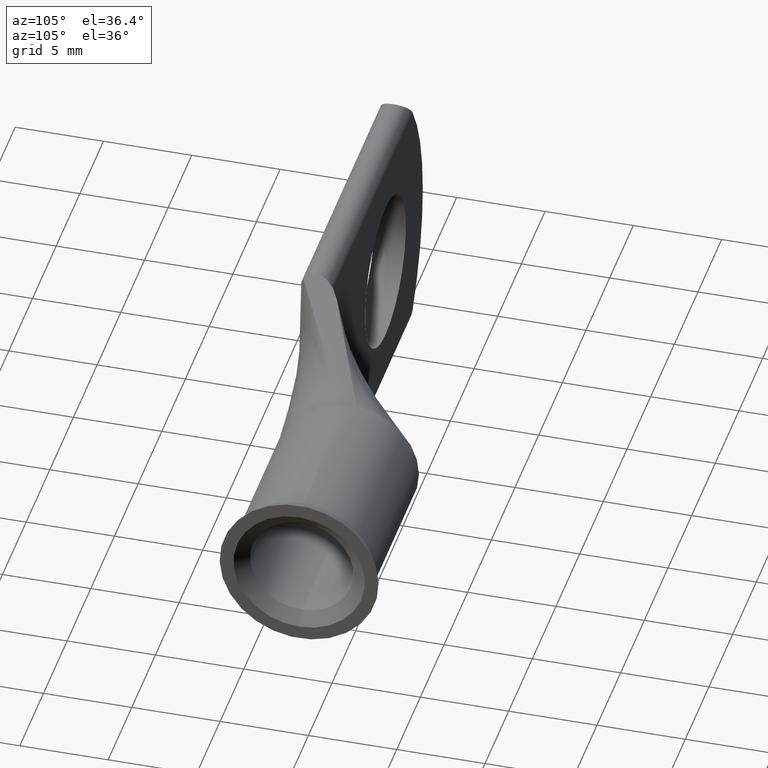
[diagram: clean part render]
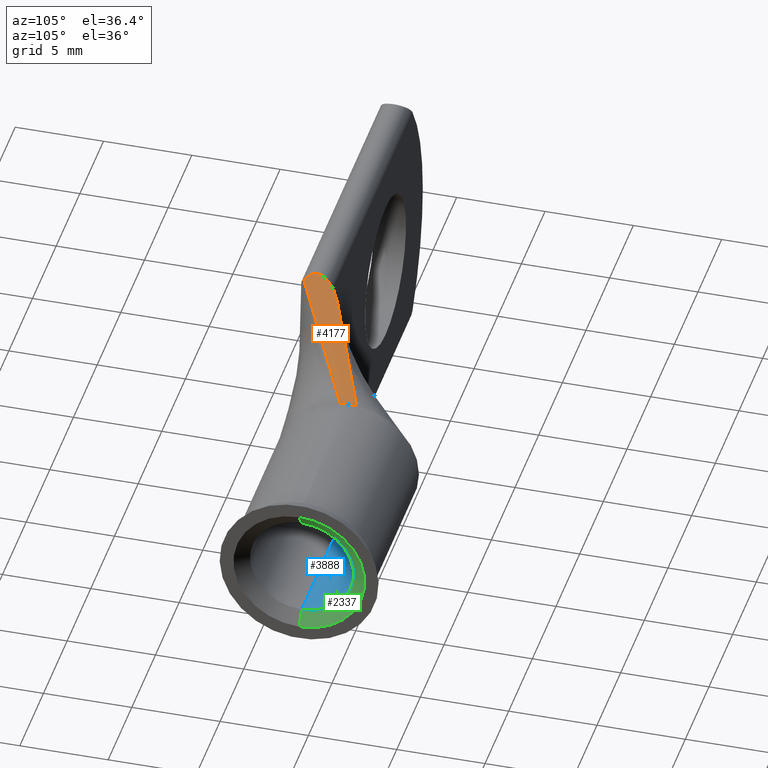
[diagram: same view with three faces highlighted in distinct colors, each labeled with its STEP entity id]
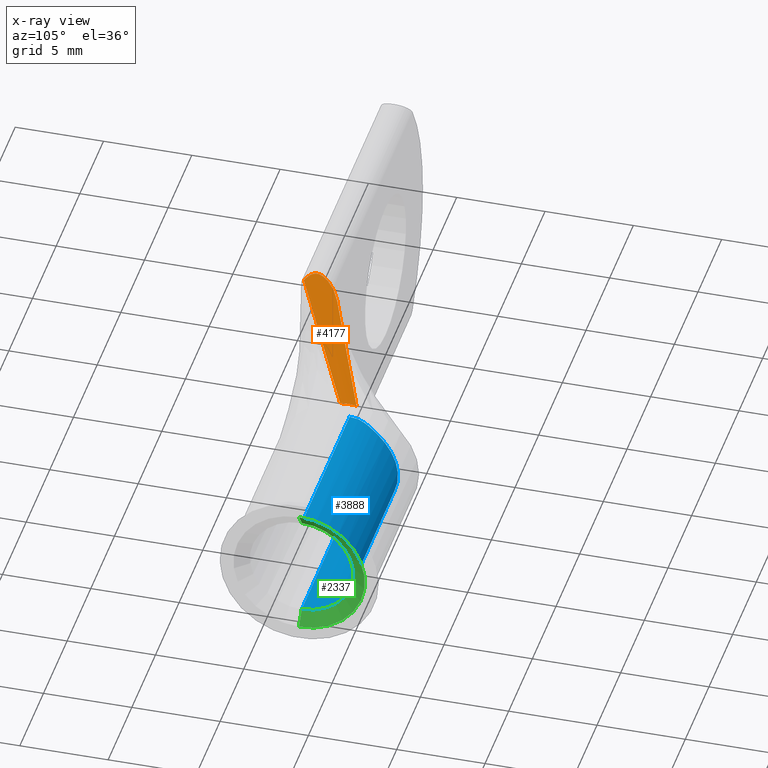
[diagram: x-ray of the same camera — body ghosted, the three highlighted faces saturated]
A machine part, auxiliary view with three faces highlighted in distinct colors.
The next image is the same camera in x-ray (body ghosted, the three faces saturated) — at least one of them is partly hidden behind the body in this view.
Their STEP definitions:

[orange] entity #4177 — the highlighted face is a freeform B-spline surface patch.
#8 = CARTESIAN_POINT ( 'NONE',  ( 0.6402576636837783441, 0.1327373430997975112, 0.1502413066314799428 ) ) ;
#18 = LINE ( 'NONE', #961, #1896 ) ;
#28 = CARTESIAN_POINT ( 'NONE',  ( 0.6402576636837783441, 0.1269663321681389623, 0.1495022548466196088 ) ) ;
#113 = CARTESIAN_POINT ( 'NONE',  ( 0.3750000000000001665, -0.01166666666666666026, 0.2999999999999999889 ) ) ;
#130 = EDGE_CURVE ( 'NONE', #530, #387, #2767, .T. ) ;
#188 = ORIENTED_EDGE ( 'NONE', *, *, #3182, .F. ) ;
#198 = CARTESIAN_POINT ( 'NONE',  ( 0.3750000000000002220, -0.005601093219272100174, 0.2999999999999649614 ) ) ;
#209 = B_SPLINE_CURVE_WITH_KNOTS ( 'NONE', 3,
 ( #3537, #198, #887, #3797, #3143, #869 ),
 .UNSPECIFIED., .F., .F.,
 ( 4, 2, 4 ),
 ( 7.736893155969312990E-17, 0.0004201354584350807243, 0.0008402709168700841450 ),
 .UNSPECIFIED. ) ;
#229 = ORIENTED_EDGE ( 'NONE', *, *, #3762, .T. ) ;
#242 = CARTESIAN_POINT ( 'NONE',  ( 0.3882626671776301386, 0.03068299232843550370, 0.2925069834889248432 ) ) ;
#265 = DIRECTION ( 'NONE',  ( 1.000000000000000000, 0.000000000000000000, 0.000000000000000000 ) ) ;
#338 = B_SPLINE_SURFACE_WITH_KNOTS ( 'NONE', 3, 1, ( 
 ( #1982, #3578, #2867 ),
 ( #629, #690, #1941 ),
 ( #2913, #1662, #2264 ),
 ( #28, #4179, #1641 ),
 ( #8, #1341, #2631 ),
 ( #4055, #1387, #113 ),
 ( #1038, #2107, #2326 ),
 ( #3677, #1106, #3048 ),
 ( #2416, #2394, #1362 ),
 ( #1059, #2721, #784 ),
 ( #1410, #1747, #403 ),
 ( #1708, #2654, #3007 ) ),
 .UNSPECIFIED., .F., .F., .F.,
 ( 4, 3, 2, 3, 4 ),
 ( 2, 1, 2 ),
 ( -0.05628810992423987497, 0.000000000000000000, 0.5000000000000000000, 1.000000000000000000, 1.061457322181564855 ),
 ( -0.04831874167357881611, 0.000000000000000000, 1.000000000000000000 ),
 .UNSPECIFIED. ) ;
#358 = FACE_OUTER_BOUND ( 'NONE', #2749, .T. ) ;
#387 = VERTEX_POINT ( 'NONE', #2527 ) ;
#403 = CARTESIAN_POINT ( 'NONE',  ( 0.3750000000000001665, 0.03786800836847303148, 0.3000000000000000444 ) ) ;
#410 = ORIENTED_EDGE ( 'NONE', *, *, #1853, .T. ) ;
#419 = EDGE_CURVE ( 'NONE', #3214, #877, #1175, .T. ) ;
#475 = EDGE_CURVE ( 'NONE', #1172, #2465, #1005, .T. ) ;
#512 = CARTESIAN_POINT ( 'NONE',  ( 0.6280315000000000758, 0.1377522466780526089, 0.000000000000000000 ) ) ;
#530 = VERTEX_POINT ( 'NONE', #1404 ) ;
#629 = CARTESIAN_POINT ( 'NONE',  ( 0.6402576636837783441, 0.1256669749773582367, 0.1493358555341958993 ) ) ;
#690 = CARTESIAN_POINT ( 'NONE',  ( 0.6280315000000000758, 0.1181404962684076271, 0.1562802147128670716 ) ) ;
#731 = VECTOR ( 'NONE', #3287, 39.37007874015748143 ) ;
#784 = CARTESIAN_POINT ( 'NONE',  ( 0.3750000000000001665, 0.03643400418423651393, 0.3000000000000000444 ) ) ;
#794 = DIRECTION ( 'NONE',  ( -0.7681554923533345791, -0.4690357515159294111, 0.4358240509280016384 ) ) ;
#869 = CARTESIAN_POINT ( 'NONE',  ( 0.3924099061534160882, -0.02436951112401454858, 0.2901222397006986697 ) ) ;
#877 = VERTEX_POINT ( 'NONE', #2277 ) ;
#887 = CARTESIAN_POINT ( 'NONE',  ( 0.3775021603791791636, -0.01077380282767164896, 0.2985923040590962030 ) ) ;
#910 = CARTESIAN_POINT ( 'NONE',  ( 0.3749999999999641953, 0.003807224813390403320, 0.3000000000000203615 ) ) ;
#961 = CARTESIAN_POINT ( 'NONE',  ( 0.5015157500000001489, 0.09550172842939032292, 0.2282194722031203882 ) ) ;
#1005 = CIRCLE ( 'NONE', #1210, 0.1575000000000000011 ) ;
#1038 = CARTESIAN_POINT ( 'NONE',  ( 0.6402576636837783441, 0.1502437213004680361, 0.1506108325239100820 ) ) ;
#1059 = CARTESIAN_POINT ( 'NONE',  ( 0.6402576636837783441, 0.1625595333886306337, 0.1494114145593175569 ) ) ;
#1086 = CARTESIAN_POINT ( 'NONE',  ( 0.6280315000000000758, 0.1560046757007648444, 0.1564496264679147985 ) ) ;
#1106 = CARTESIAN_POINT ( 'NONE',  ( 0.6280315000000000758, 0.1499607054200303158, 0.1571439320740949663 ) ) ;
#1147 = AXIS2_PLACEMENT_3D ( 'NONE', #512, #1513, #3494 ) ;
#1172 = VERTEX_POINT ( 'NONE', #1086 ) ;
#1175 = B_SPLINE_CURVE_WITH_KNOTS ( 'NONE', 3,
 ( #1943, #3181, #3887, #2247, #1872, #242, #3840, #1549, #3580, #3256, #910, #4160 ),
 .UNSPECIFIED., .F., .F.,
 ( 4, 2, 2, 2, 2, 4 ),
 ( 2.221953256361079964E-18, 0.0005216576383822607056, 0.001043315276764519243, 0.001564972915146777780, 0.001825801734337907265, 0.002086630553529037185 ),
 .UNSPECIFIED. ) ;
#1210 = AXIS2_PLACEMENT_3D ( 'NONE', #1898, #265, #1571 ) ;
#1341 = CARTESIAN_POINT ( 'NONE',  ( 0.6280315000000000758, 0.1255437879360749021, 0.1571439320740949663 ) ) ;
#1362 = CARTESIAN_POINT ( 'NONE',  ( 0.3750000000000001665, 0.03500000000000000333, 0.3000000000000000444 ) ) ;
#1387 = CARTESIAN_POINT ( 'NONE',  ( 0.6280315000000000758, 0.1316480173070637416, 0.1574964259080220697 ) ) ;
#1404 = CARTESIAN_POINT ( 'NONE',  ( 0.6280315000000000758, 0.1194999350007622529, 0.1564486142684360925 ) ) ;
#1410 = CARTESIAN_POINT ( 'NONE',  ( 0.6402576636837783441, 0.1632688751449111741, 0.1493205742720155049 ) ) ;
#1513 = DIRECTION ( 'NONE',  ( 1.000000000000000000, 0.000000000000000000, 0.000000000000000000 ) ) ;
#1549 = CARTESIAN_POINT ( 'NONE',  ( 0.3793879530454755122, 0.01671104906820638017, 0.2975260993469525661 ) ) ;
#1571 = DIRECTION ( 'NONE',  ( 0.000000000000000000, 0.000000000000000000, -1.000000000000000000 ) ) ;
#1577 = VERTEX_POINT ( 'NONE', #2474 ) ;
#1641 = CARTESIAN_POINT ( 'NONE',  ( 0.3750000000000001665, -0.03500000000000000333, 0.3000000000000000444 ) ) ;
#1662 = CARTESIAN_POINT ( 'NONE',  ( 0.6280315000000000758, 0.1188207663828660943, 0.1563595795595539018 ) ) ;
#1708 = CARTESIAN_POINT ( 'NONE',  ( 0.6402576636837783441, 0.1639782169011917146, 0.1492297339847134530 ) ) ;
#1747 = CARTESIAN_POINT ( 'NONE',  ( 0.6280315000000000758, 0.1574889421469182482, 0.1562656377892913950 ) ) ;
#1853 = EDGE_CURVE ( 'NONE', #877, #1577, #1952, .T. ) ;
#1859 = ORIENTED_EDGE ( 'NONE', *, *, #419, .T. ) ;
#1872 = CARTESIAN_POINT ( 'NONE',  ( 0.3970272686086605551, 0.04020653579085120555, 0.2875322321541650128 ) ) ;
#1896 = VECTOR ( 'NONE', #3958, 39.37007874015748143 ) ;
#1898 = CARTESIAN_POINT ( 'NONE',  ( 0.6280315000000000758, 0.1377522466780526089, 0.000000000000000000 ) ) ;
#1941 = CARTESIAN_POINT ( 'NONE',  ( 0.3750000000000001665, -0.03762677846313119273, 0.3000000000000000444 ) ) ;
#1943 = CARTESIAN_POINT ( 'NONE',  ( 0.4226147237754311337, 0.05777007477014962922, 0.2729851026176340900 ) ) ;
#1952 = LINE ( 'NONE', #2645, #731 ) ;
#1973 = CARTESIAN_POINT ( 'NONE',  ( 0.4226147237754311337, 0.05777007477014962922, 0.2729851026176340900 ) ) ;
#1982 = CARTESIAN_POINT ( 'NONE',  ( 0.6402576636837783441, 0.1250172963819678462, 0.1492526558779840584 ) ) ;
#2107 = CARTESIAN_POINT ( 'NONE',  ( 0.6280315000000000758, 0.1438564760490414762, 0.1574964259080220697 ) ) ;
#2247 = CARTESIAN_POINT ( 'NONE',  ( 0.4017762886888706642, 0.04444039299306372370, 0.2848314263396590773 ) ) ;
#2264 = CARTESIAN_POINT ( 'NONE',  ( 0.3750000000000001665, -0.03631338923156560150, 0.3000000000000000444 ) ) ;
#2277 = CARTESIAN_POINT ( 'NONE',  ( 0.3750000000000001110, 0.0002859616682101809217, 0.3000000000000000444 ) ) ;
#2326 = CARTESIAN_POINT ( 'NONE',  ( 0.3750000000000001665, 0.01166666666666667414, 0.2999999999999999889 ) ) ;
#2365 = CARTESIAN_POINT ( 'NONE',  ( 0.6280315000000002978, 0.1377522466780525534, 0.1574982129540110631 ) ) ;
#2394 = CARTESIAN_POINT ( 'NONE',  ( 0.6280315000000000758, 0.1560034568587806425, 0.1564389444062407319 ) ) ;
#2416 = CARTESIAN_POINT ( 'NONE',  ( 0.6402576636837783441, 0.1618501916323500933, 0.1495022548466196088 ) ) ;
#2465 = VERTEX_POINT ( 'NONE', #2365 ) ;
#2474 = CARTESIAN_POINT ( 'NONE',  ( 0.3750000000000001110, 0.000000000000000000, 0.3000000000000000444 ) ) ;
#2527 = CARTESIAN_POINT ( 'NONE',  ( 0.3924099061534160882, -0.02436951112401454858, 0.2901222397006986697 ) ) ;
#2631 = CARTESIAN_POINT ( 'NONE',  ( 0.3750000000000001665, -0.02333333333333333093, 0.2999999999999999889 ) ) ;
#2645 = CARTESIAN_POINT ( 'NONE',  ( 0.3750000000000001110, 0.03500000000000000333, 0.3000000000000000444 ) ) ;
#2654 = CARTESIAN_POINT ( 'NONE',  ( 0.6280315000000000758, 0.1582316847909870650, 0.1561789844808167127 ) ) ;
#2721 = CARTESIAN_POINT ( 'NONE',  ( 0.6280315000000000758, 0.1567461995028494592, 0.1563522910977660774 ) ) ;
#2749 = EDGE_LOOP ( 'NONE', ( #188, #1859, #410, #229, #3145, #2771, #3329 ) ) ;
#2767 = LINE ( 'NONE', #4044, #2773 ) ;
#2771 = ORIENTED_EDGE ( 'NONE', *, *, #3307, .F. ) ;
#2773 = VECTOR ( 'NONE', #794, 39.37007874015748854 ) ;
#2867 = CARTESIAN_POINT ( 'NONE',  ( 0.3750000000000001665, -0.03894016769469679784, 0.3000000000000000444 ) ) ;
#2913 = CARTESIAN_POINT ( 'NONE',  ( 0.6402576636837783441, 0.1263166535727485995, 0.1494190551904077402 ) ) ;
#2987 = CIRCLE ( 'NONE', #1147, 0.1575000000000000011 ) ;
#3007 = CARTESIAN_POINT ( 'NONE',  ( 0.3750000000000001665, 0.03930201255270954208, 0.3000000000000000444 ) ) ;
#3048 = CARTESIAN_POINT ( 'NONE',  ( 0.3750000000000001665, 0.02333333333333333787, 0.2999999999999999889 ) ) ;
#3143 = CARTESIAN_POINT ( 'NONE',  ( 0.3881789212985642945, -0.02187233045698938616, 0.2925445982471355233 ) ) ;
#3145 = ORIENTED_EDGE ( 'NONE', *, *, #130, .F. ) ;
#3181 = CARTESIAN_POINT ( 'NONE',  ( 0.4170368028882748268, 0.05510262937528485894, 0.2761498161437303533 ) ) ;
#3182 = EDGE_CURVE ( 'NONE', #3214, #1172, #18, .T. ) ;
#3214 = VERTEX_POINT ( 'NONE', #1973 ) ;
#3256 = CARTESIAN_POINT ( 'NONE',  ( 0.3757810248707028622, 0.007246678525051625762, 0.2995602207252381355 ) ) ;
#3287 = DIRECTION ( 'NONE',  ( -0.000000000000000000, -1.000000000000000000, -0.000000000000000000 ) ) ;
#3307 = EDGE_CURVE ( 'NONE', #2465, #530, #2987, .T. ) ;
#3329 = ORIENTED_EDGE ( 'NONE', *, *, #475, .F. ) ;
#3494 = DIRECTION ( 'NONE',  ( 0.000000000000000000, 0.000000000000000000, -1.000000000000000000 ) ) ;
#3537 = CARTESIAN_POINT ( 'NONE',  ( 0.3750000000000001110, 0.000000000000000000, 0.3000000000000000444 ) ) ;
#3578 = CARTESIAN_POINT ( 'NONE',  ( 0.6280315000000000758, 0.1174602261539491599, 0.1562008498661802414 ) ) ;
#3580 = CARTESIAN_POINT ( 'NONE',  ( 0.3779672069283810942, 0.01368775353263072987, 0.2983276815954228889 ) ) ;
#3677 = CARTESIAN_POINT ( 'NONE',  ( 0.6402576636837783441, 0.1560791807006915721, 0.1502413066314799428 ) ) ;
#3762 = EDGE_CURVE ( 'NONE', #1577, #387, #209, .T. ) ;
#3797 = CARTESIAN_POINT ( 'NONE',  ( 0.3840983380980192430, -0.01878327373993834634, 0.2948614525262600594 ) ) ;
#3840 = CARTESIAN_POINT ( 'NONE',  ( 0.3842495514948630064, 0.02541934880240004704, 0.2947793285397470875 ) ) ;
#3887 = CARTESIAN_POINT ( 'NONE',  ( 0.4117689369730049287, 0.05187820376716566900, 0.2791471281938289195 ) ) ;
#3958 = DIRECTION ( 'NONE',  ( 0.8030660101565659792, 0.3840382059733004061, -0.4556310345927099270 ) ) ;
#4044 = CARTESIAN_POINT ( 'NONE',  ( 0.5015157500000001489, 0.04225051824866229988, 0.2282194722031203882 ) ) ;
#4055 = CARTESIAN_POINT ( 'NONE',  ( 0.6402576636837783441, 0.1385728025000210195, 0.1506108325239100820 ) ) ;
#4160 = CARTESIAN_POINT ( 'NONE',  ( 0.3750000000000001110, 0.0002859616682101809217, 0.3000000000000000444 ) ) ;
#4177 = ADVANCED_FACE ( 'NONE', ( #358 ), #338, .T. ) ;
#4179 = CARTESIAN_POINT ( 'NONE',  ( 0.6280315000000000758, 0.1195010364973245615, 0.1564389444062407319 ) ) ;

[blue] entity #3888 — the highlighted cylindrical surface (partial cylindrical patch) has radius 2.9337 mm, axis along (1, 0, 0).
#70 = VERTEX_POINT ( 'NONE', #2150 ) ;
#154 = CARTESIAN_POINT ( 'NONE',  ( 0.6176342598689799068, 0.1481483994189426168, 0.1150562994809641859 ) ) ;
#190 = DIRECTION ( 'NONE',  ( 1.000000000000000000, 0.000000000000000000, 0.000000000000000000 ) ) ;
#227 = CARTESIAN_POINT ( 'NONE',  ( 0.6203943875644546413, 0.1645713512357883657, -0.1123220622951933007 ) ) ;
#269 = CARTESIAN_POINT ( 'NONE',  ( 0.6348065458001594941, 0.2033908523382089995, 0.09509521409948777648 ) ) ;
#287 = CARTESIAN_POINT ( 'NONE',  ( 0.6174294097354671162, 0.1455073327221967361, -0.1152653033977584507 ) ) ;
#295 = CARTESIAN_POINT ( 'NONE',  ( 0.6413637944376505695, 0.2285372516505770613, 0.07189574516818560135 ) ) ;
#328 = VECTOR ( 'NONE', #2086, 39.37007874015748143 ) ;
#428 = CARTESIAN_POINT ( 'NONE',  ( 1.015748035433071239, 0.1377522466780526089, 0.1154999999999999916 ) ) ;
#471 = AXIS2_PLACEMENT_3D ( 'NONE', #3949, #1917, #2545 ) ;
#499 = DIRECTION ( 'NONE',  ( 0.000000000000000000, 0.000000000000000000, -1.000000000000000000 ) ) ;
#552 = CARTESIAN_POINT ( 'NONE',  ( 0.6387810236171761469, 0.2173672978528813637, -0.08409337098796895726 ) ) ;
#592 = CARTESIAN_POINT ( 'NONE',  ( 0.6424054627189454969, 0.2338878507461815692, 0.06467986741072787038 ) ) ;
#607 = CARTESIAN_POINT ( 'NONE',  ( 0.6170830233122135411, 0.1412944670033133843, -0.1154592624480599156 ) ) ;
#615 = CARTESIAN_POINT ( 'NONE',  ( 0.6455805997618953018, 0.2519310022506898727, -0.02007435896054088342 ) ) ;
#701 = EDGE_CURVE ( 'NONE', #3122, #70, #1999, .T. ) ;
#767 = CARTESIAN_POINT ( 'NONE',  ( 0.6242962447153582728, 0.1758199968643536226, 0.1091254524094408818 ) ) ;
#779 = CARTESIAN_POINT ( 'NONE',  ( 0.6174484611705928216, 0.1457500520732798455, 0.1152478121793741594 ) ) ;
#792 = CARTESIAN_POINT ( 'NONE',  ( 0.6202761128304352667, 0.1643855479743460413, 0.1123943471616712236 ) ) ;
#810 = CARTESIAN_POINT ( 'NONE',  ( 0.6295452031104922241, 0.1883154272654119499, 0.1039455773088547863 ) ) ;
#832 = VERTEX_POINT ( 'NONE', #2257 ) ;
#854 = ORIENTED_EDGE ( 'NONE', *, *, #2419, .T. ) ;
#875 = CARTESIAN_POINT ( 'NONE',  ( 0.6256494680982680467, 0.1790659707273163648, -0.1079064328265897377 ) ) ;
#892 = CARTESIAN_POINT ( 'NONE',  ( 0.6185943657574122234, 0.1595528113024522465, -0.1135436270953341931 ) ) ;
#916 = ORIENTED_EDGE ( 'NONE', *, *, #3004, .T. ) ;
#992 = CARTESIAN_POINT ( 'NONE',  ( 0.6169315739194825010, 0.1395228645298342285, -0.1154999999999999638 ) ) ;
#1014 = CARTESIAN_POINT ( 'NONE',  ( 0.6172285330720433949, 0.1430642046079009799, -0.1153777842695530576 ) ) ;
#1028 = DIRECTION ( 'NONE',  ( 1.000000000000000000, 0.000000000000000000, 0.000000000000000000 ) ) ;
#1067 = ORIENTED_EDGE ( 'NONE', *, *, #1419, .F. ) ;
#1078 = VECTOR ( 'NONE', #1028, 39.37007874015748143 ) ;
#1171 = CARTESIAN_POINT ( 'NONE',  ( 0.6193011376645185528, 0.1613995770460371348, 0.1130830137473463753 ) ) ;
#1242 = CARTESIAN_POINT ( 'NONE',  ( 0.6167744262315528747, 0.1377522466780524424, -0.1154999999999999361 ) ) ;
#1253 = CARTESIAN_POINT ( 'NONE',  ( 0.6183165237126612146, 0.1576819543546519875, -0.1137675557965683315 ) ) ;
#1258 = CARTESIAN_POINT ( 'NONE',  ( 0.6457788687414507400, 0.2532639886716894217, -0.009949325801066884883 ) ) ;
#1284 = AXIS2_PLACEMENT_3D ( 'NONE', #3753, #190, #499 ) ;
#1286 = VERTEX_POINT ( 'NONE', #428 ) ;
#1311 = LINE ( 'NONE', #1605, #1078 ) ;
#1352 = CARTESIAN_POINT ( 'NONE',  ( 0.6183165237126612146, 0.1576819543546533198, 0.1137675557965681372 ) ) ;
#1370 = CARTESIAN_POINT ( 'NONE',  ( 0.6316581125943973030, 0.1940530745693944403, 0.1008790114755172412 ) ) ;
#1388 = CARTESIAN_POINT ( 'NONE',  ( 0.6190950845901136423, 0.1607819650597246686, 0.1132221636163501383 ) ) ;
#1395 = ORIENTED_EDGE ( 'NONE', *, *, #2523, .F. ) ;
#1419 = EDGE_CURVE ( 'NONE', #832, #3122, #2062, .T. ) ;
#1427 = CARTESIAN_POINT ( 'NONE',  ( 0.6167744262315532078, 0.1377522466780531085, 0.1154999999999997695 ) ) ;
#1444 = LINE ( 'NONE', #3771, #328 ) ;
#1472 = CARTESIAN_POINT ( 'NONE',  ( 0.6221330698165584705, 0.1699138824534913716, 0.1109504418426293798 ) ) ;
#1496 = VERTEX_POINT ( 'NONE', #1242 ) ;
#1575 = CARTESIAN_POINT ( 'NONE',  ( 0.6339792383400052467, 0.2008349849734716031, 0.09678850927388832348 ) ) ;
#1601 = CARTESIAN_POINT ( 'NONE',  ( 0.6371971291635331047, 0.2113959035792045971, 0.08922060080915877878 ) ) ;
#1605 = CARTESIAN_POINT ( 'NONE',  ( 0.6280315000000000758, 0.1377522466780526089, -0.1154999999999999916 ) ) ;
#1617 = CARTESIAN_POINT ( 'NONE',  ( 0.6180793379058830972, 0.1552661750296618903, -0.1141907500492805733 ) ) ;
#1743 = CARTESIAN_POINT ( 'NONE',  ( 0.6183165237126612146, 0.1576819543546533198, 0.1137675557965681372 ) ) ;
#1813 = CARTESIAN_POINT ( 'NONE',  ( 0.6199008181266509876, 0.1632184414977979336, 0.1126680057606419955 ) ) ;
#1852 = CARTESIAN_POINT ( 'NONE',  ( 1.015748035433071239, 0.1377522466780526089, -0.1154999999999999916 ) ) ;
#1876 = CARTESIAN_POINT ( 'NONE',  ( 0.6441199379858770779, 0.2430848083905396140, -0.04829664767384925228 ) ) ;
#1917 = DIRECTION ( 'NONE',  ( 1.000000000000000000, 0.000000000000000000, 0.000000000000000000 ) ) ;
#1999 = B_SPLINE_CURVE_WITH_KNOTS ( 'NONE', 3,
 ( #1743, #3110, #2104, #3754, #154, #779, #3044, #2087, #4108, #1427 ),
 .UNSPECIFIED., .F., .F.,
 ( 4, 3, 3, 4 ),
 ( 0.000000000000000000, 0.0001837578427158868420, 0.0003674590619758314153, 0.0005102036991478837730 ),
 .UNSPECIFIED. ) ;
#2062 = B_SPLINE_CURVE_WITH_KNOTS ( 'NONE', 3,
 ( #2374, #2811, #892, #2489, #4123, #2574, #227, #3803, #3562, #4142, #875, #2172, #3824, #2849, #2210, #3495, #552, #2512, #3520, #1876, #3186, #615, #1258, #4185, #4164, #3543, #3235, #592, #295, #3212, #1601, #269, #1575, #2873, #1370, #810, #2705, #2379, #767, #1472, #4041, #792, #1813, #1171, #1388, #4031, #2121, #2194, #2856, #2793 ),
 .UNSPECIFIED., .F., .F.,
 ( 4, 2, 2, 2, 2, 2, 2, 2, 2, 2, 2, 2, 2, 2, 2, 2, 2, 2, 2, 2, 2, 2, 2, 2, 4 ),
 ( 0.01887805076466289242, 0.02639925045567949671, 0.03392045014669610448, 0.04896284952872980573, 0.07904764829279715965, 0.1392172458209316732, 0.1993868433490661729, 0.2595564408772006448, 0.3197260384053351445, 0.3798956359334696442, 0.4400652334616041439, 0.5002348309897386436, 0.5604044285178730878, 0.6205740260460075319, 0.6807436235741419761, 0.7409132211022764203, 0.7709980198663435313, 0.8010828186304107534, 0.8612524161585458637, 0.9214220136866809741, 0.9515068124507481961, 0.9665492118327815296, 0.9740704115237980298, 0.9778310113693059469, 0.9815916112148139749 ),
 .UNSPECIFIED. ) ;
#2086 = DIRECTION ( 'NONE',  ( 1.000000000000000000, 0.000000000000000000, 0.000000000000000000 ) ) ;
#2087 = CARTESIAN_POINT ( 'NONE',  ( 0.6170993253029309900, 0.1414852815232415240, 0.1154547546196637992 ) ) ;
#2104 = CARTESIAN_POINT ( 'NONE',  ( 0.6179787627618724688, 0.1529287826122633642, 0.1145238337939353951 ) ) ;
#2121 = CARTESIAN_POINT ( 'NONE',  ( 0.6187158963263272859, 0.1593793433461232756, 0.1134822754080425933 ) ) ;
#2150 = CARTESIAN_POINT ( 'NONE',  ( 0.6167744262315532078, 0.1377522466780531085, 0.1154999999999997695 ) ) ;
#2172 = CARTESIAN_POINT ( 'NONE',  ( 0.6281944882410782638, 0.1852416645104129067, -0.1053379428044467214 ) ) ;
#2194 = CARTESIAN_POINT ( 'NONE',  ( 0.6185686838983940339, 0.1585233622189591851, 0.1135950494644794723 ) ) ;
#2210 = CARTESIAN_POINT ( 'NONE',  ( 0.6340512692894806346, 0.2008390253760741206, -0.09698069537282569264 ) ) ;
#2224 = CYLINDRICAL_SURFACE ( 'NONE', #471, 0.1154999999999999916 ) ;
#2257 = CARTESIAN_POINT ( 'NONE',  ( 0.6183165237126612146, 0.1576819543546519875, -0.1137675557965683315 ) ) ;
#2285 = CARTESIAN_POINT ( 'NONE',  ( 0.6177952092204185286, 0.1503820214733709859, -0.1148073986667215857 ) ) ;
#2315 = ORIENTED_EDGE ( 'NONE', *, *, #701, .F. ) ;
#2374 = CARTESIAN_POINT ( 'NONE',  ( 0.6183165237126612146, 0.1576819543546519875, -0.1137675557965683315 ) ) ;
#2379 = CARTESIAN_POINT ( 'NONE',  ( 0.6256239374912117013, 0.1790087696674554085, 0.1079284666099565443 ) ) ;
#2419 = EDGE_CURVE ( 'NONE', #3826, #1286, #3132, .T. ) ;
#2489 = CARTESIAN_POINT ( 'NONE',  ( 0.6190957118626100320, 0.1608724913698282577, -0.1132176003676842457 ) ) ;
#2512 = CARTESIAN_POINT ( 'NONE',  ( 0.6413839981443778537, 0.2286542314417576161, -0.07174321240656703069 ) ) ;
#2523 = EDGE_CURVE ( 'NONE', #70, #1286, #1444, .T. ) ;
#2545 = DIRECTION ( 'NONE',  ( 0.000000000000000000, 0.000000000000000000, -1.000000000000000000 ) ) ;
#2552 = B_SPLINE_CURVE_WITH_KNOTS ( 'NONE', 3,
 ( #3275, #992, #607, #1014, #287, #3858, #2285, #2888, #1617, #1253 ),
 .UNSPECIFIED., .F., .F.,
 ( 4, 3, 3, 4 ),
 ( 0.0002320017393878678706, 0.0003674498666433200400, 0.0005544466204353007887, 0.0007422081698544409026 ),
 .UNSPECIFIED. ) ;
#2574 = CARTESIAN_POINT ( 'NONE',  ( 0.6200236995674320850, 0.1634112848257210371, -0.1125926117181015179 ) ) ;
#2705 = CARTESIAN_POINT ( 'NONE',  ( 0.6282229814099770104, 0.1852485854168028634, 0.1053347703389848206 ) ) ;
#2793 = CARTESIAN_POINT ( 'NONE',  ( 0.6183165237126612146, 0.1576819543546533198, 0.1137675557965681372 ) ) ;
#2808 = ORIENTED_EDGE ( 'NONE', *, *, #3946, .F. ) ;
#2811 = CARTESIAN_POINT ( 'NONE',  ( 0.6184555227793320231, 0.1585720865843098792, -0.1136561572940993775 ) ) ;
#2849 = CARTESIAN_POINT ( 'NONE',  ( 0.6323678380343012995, 0.1960269989203751728, -0.09981639532197006393 ) ) ;
#2856 = CARTESIAN_POINT ( 'NONE',  ( 0.6184914143517533658, 0.1580917137651382809, 0.1136538939540852888 ) ) ;
#2873 = CARTESIAN_POINT ( 'NONE',  ( 0.6323935645378214732, 0.1961509641434804330, 0.09968671086046132501 ) ) ;
#2888 = CARTESIAN_POINT ( 'NONE',  ( 0.6179718476591061771, 0.1528249533828405782, -0.1145386557092536173 ) ) ;
#3004 = EDGE_CURVE ( 'NONE', #1496, #3826, #1311, .T. ) ;
#3044 = CARTESIAN_POINT ( 'NONE',  ( 0.6172519927394897188, 0.1433501474613812221, 0.1153642644271613699 ) ) ;
#3110 = CARTESIAN_POINT ( 'NONE',  ( 0.6180843904774370179, 0.1553176363631379453, 0.1141817350948356041 ) ) ;
#3122 = VERTEX_POINT ( 'NONE', #1352 ) ;
#3132 = CIRCLE ( 'NONE', #1284, 0.1154999999999999916 ) ;
#3186 = CARTESIAN_POINT ( 'NONE',  ( 0.6447425667936544924, 0.2468429817901952594, -0.03918765432192782006 ) ) ;
#3212 = CARTESIAN_POINT ( 'NONE',  ( 0.6387405433707986635, 0.2172286321133912734, 0.08421822231915000734 ) ) ;
#3235 = CARTESIAN_POINT ( 'NONE',  ( 0.6441070075752771684, 0.2429973300433701244, 0.04849206576620316428 ) ) ;
#3275 = CARTESIAN_POINT ( 'NONE',  ( 0.6167744262315528747, 0.1377522466780524424, -0.1154999999999999361 ) ) ;
#3359 = EDGE_LOOP ( 'NONE', ( #1395, #2315, #1067, #2808, #916, #854 ) ) ;
#3495 = CARTESIAN_POINT ( 'NONE',  ( 0.6372133966336126498, 0.2115037710505278112, -0.08912301334991927504 ) ) ;
#3520 = CARTESIAN_POINT ( 'NONE',  ( 0.6424331724909077002, 0.2340074329717950763, -0.06451062244045335792 ) ) ;
#3543 = CARTESIAN_POINT ( 'NONE',  ( 0.6447369523226450516, 0.2467747529342165236, 0.03939511655675402568 ) ) ;
#3562 = CARTESIAN_POINT ( 'NONE',  ( 0.6221341826250726958, 0.1699777236955167525, -0.1109398910411387995 ) ) ;
#3753 = CARTESIAN_POINT ( 'NONE',  ( 1.015748035433071239, 0.1377522466780526089, 0.000000000000000000 ) ) ;
#3754 = CARTESIAN_POINT ( 'NONE',  ( 0.6178064837100406548, 0.1505382079583802157, 0.1147901093044953053 ) ) ;
#3771 = CARTESIAN_POINT ( 'NONE',  ( 0.6280315000000000758, 0.1377522466780526089, 0.1154999999999999916 ) ) ;
#3803 = CARTESIAN_POINT ( 'NONE',  ( 0.6214362176040378882, 0.1678903910408604261, -0.1115180430450382204 ) ) ;
#3824 = CARTESIAN_POINT ( 'NONE',  ( 0.6294942561186543939, 0.1882864693437246162, -0.1039563560904724904 ) ) ;
#3826 = VERTEX_POINT ( 'NONE', #1852 ) ;
#3858 = CARTESIAN_POINT ( 'NONE',  ( 0.6176192917703164920, 0.1479490609270724122, -0.1150750446907800734 ) ) ;
#3888 = ADVANCED_FACE ( 'NONE', ( #3927 ), #2224, .F. ) ;
#3927 = FACE_OUTER_BOUND ( 'NONE', #3359, .T. ) ;
#3946 = EDGE_CURVE ( 'NONE', #1496, #832, #2552, .T. ) ;
#3949 = CARTESIAN_POINT ( 'NONE',  ( 0.6280315000000000758, 0.1377522466780526089, 0.000000000000000000 ) ) ;
#4031 = CARTESIAN_POINT ( 'NONE',  ( 0.6187727433799484755, 0.1598371370139146652, 0.1134346099460638302 ) ) ;
#4041 = CARTESIAN_POINT ( 'NONE',  ( 0.6213882750944331734, 0.1677789273028750527, 0.1115517948423369043 ) ) ;
#4108 = CARTESIAN_POINT ( 'NONE',  ( 0.6169400355291611016, 0.1396182033626799102, 0.1155000000000000332 ) ) ;
#4123 = CARTESIAN_POINT ( 'NONE',  ( 0.6193414194721964527, 0.1615235965670361595, -0.1130552960734649837 ) ) ;
#4142 = CARTESIAN_POINT ( 'NONE',  ( 0.6243557818946668947, 0.1759300092008236338, -0.1090817009548653710 ) ) ;
#4164 = CARTESIAN_POINT ( 'NONE',  ( 0.6455737515267262472, 0.2518910620314781523, 0.02029592849081221853 ) ) ;
#4185 = CARTESIAN_POINT ( 'NONE',  ( 0.6457756215942361822, 0.2532438500615002419, 0.01017554916975058066 ) ) ;

[green] entity #2337 — the highlighted conical surface has half-angle 55 deg.
#190 = DIRECTION ( 'NONE',  ( 1.000000000000000000, 0.000000000000000000, 0.000000000000000000 ) ) ;
#239 = DIRECTION ( 'NONE',  ( 0.000000000000000000, 0.000000000000000000, -1.000000000000000000 ) ) ;
#336 = LINE ( 'NONE', #2588, #3689 ) ;
#428 = CARTESIAN_POINT ( 'NONE',  ( 1.015748035433071239, 0.1377522466780526089, 0.1154999999999999916 ) ) ;
#499 = DIRECTION ( 'NONE',  ( 0.000000000000000000, 0.000000000000000000, -1.000000000000000000 ) ) ;
#594 = ORIENTED_EDGE ( 'NONE', *, *, #2419, .F. ) ;
#657 = VERTEX_POINT ( 'NONE', #2794 ) ;
#778 = CARTESIAN_POINT ( 'NONE',  ( 1.015748035433071239, 0.1377522466780526089, -0.1154999999999999916 ) ) ;
#934 = EDGE_LOOP ( 'NONE', ( #1754, #594, #3188, #2335 ) ) ;
#986 = CARTESIAN_POINT ( 'NONE',  ( 1.037401578740157593, 0.1377522466780526089, -0.1464244647129192556 ) ) ;
#1217 = CIRCLE ( 'NONE', #3203, 0.1464244647129192556 ) ;
#1284 = AXIS2_PLACEMENT_3D ( 'NONE', #3753, #190, #499 ) ;
#1286 = VERTEX_POINT ( 'NONE', #428 ) ;
#1426 = DIRECTION ( 'NONE',  ( 1.000000000000000000, 0.000000000000000000, 0.000000000000000000 ) ) ;
#1754 = ORIENTED_EDGE ( 'NONE', *, *, #4126, .F. ) ;
#1783 = FACE_OUTER_BOUND ( 'NONE', #934, .T. ) ;
#1852 = CARTESIAN_POINT ( 'NONE',  ( 1.015748035433071239, 0.1377522466780526089, -0.1154999999999999916 ) ) ;
#2040 = AXIS2_PLACEMENT_3D ( 'NONE', #3731, #1426, #4089 ) ;
#2070 = VERTEX_POINT ( 'NONE', #986 ) ;
#2204 = DIRECTION ( 'NONE',  ( -1.000000000000000000, -0.000000000000000000, -0.000000000000000000 ) ) ;
#2335 = ORIENTED_EDGE ( 'NONE', *, *, #3716, .F. ) ;
#2337 = ADVANCED_FACE ( 'NONE', ( #1783 ), #2359, .F. ) ;
#2359 = CONICAL_SURFACE ( 'NONE', #2040, 0.1154999999999999916, 0.9599310885968772578 ) ;
#2419 = EDGE_CURVE ( 'NONE', #3826, #1286, #3132, .T. ) ;
#2501 = EDGE_CURVE ( 'NONE', #3826, #2070, #4050, .T. ) ;
#2588 = CARTESIAN_POINT ( 'NONE',  ( 1.015748035433071239, 0.1377522466780526089, 0.1154999999999999916 ) ) ;
#2692 = DIRECTION ( 'NONE',  ( 0.5735764363510493791, 0.000000000000000000, -0.8191520442889895781 ) ) ;
#2794 = CARTESIAN_POINT ( 'NONE',  ( 1.037401578740157593, 0.1377522466780526089, 0.1464244647129192556 ) ) ;
#3132 = CIRCLE ( 'NONE', #1284, 0.1154999999999999916 ) ;
#3178 = CARTESIAN_POINT ( 'NONE',  ( 1.037401578740157593, 0.1377522466780526089, 0.000000000000000000 ) ) ;
#3188 = ORIENTED_EDGE ( 'NONE', *, *, #2501, .T. ) ;
#3203 = AXIS2_PLACEMENT_3D ( 'NONE', #3178, #2204, #239 ) ;
#3640 = DIRECTION ( 'NONE',  ( 0.5735764363510493791, 1.003171929053522158E-16, 0.8191520442889895781 ) ) ;
#3689 = VECTOR ( 'NONE', #3640, 39.37007874015748143 ) ;
#3716 = EDGE_CURVE ( 'NONE', #657, #2070, #1217, .T. ) ;
#3731 = CARTESIAN_POINT ( 'NONE',  ( 1.015748035433071239, 0.1377522466780526089, 0.000000000000000000 ) ) ;
#3753 = CARTESIAN_POINT ( 'NONE',  ( 1.015748035433071239, 0.1377522466780526089, 0.000000000000000000 ) ) ;
#3826 = VERTEX_POINT ( 'NONE', #1852 ) ;
#3948 = VECTOR ( 'NONE', #2692, 39.37007874015748143 ) ;
#4050 = LINE ( 'NONE', #778, #3948 ) ;
#4089 = DIRECTION ( 'NONE',  ( 0.000000000000000000, 0.000000000000000000, -1.000000000000000000 ) ) ;
#4126 = EDGE_CURVE ( 'NONE', #1286, #657, #336, .T. ) ;